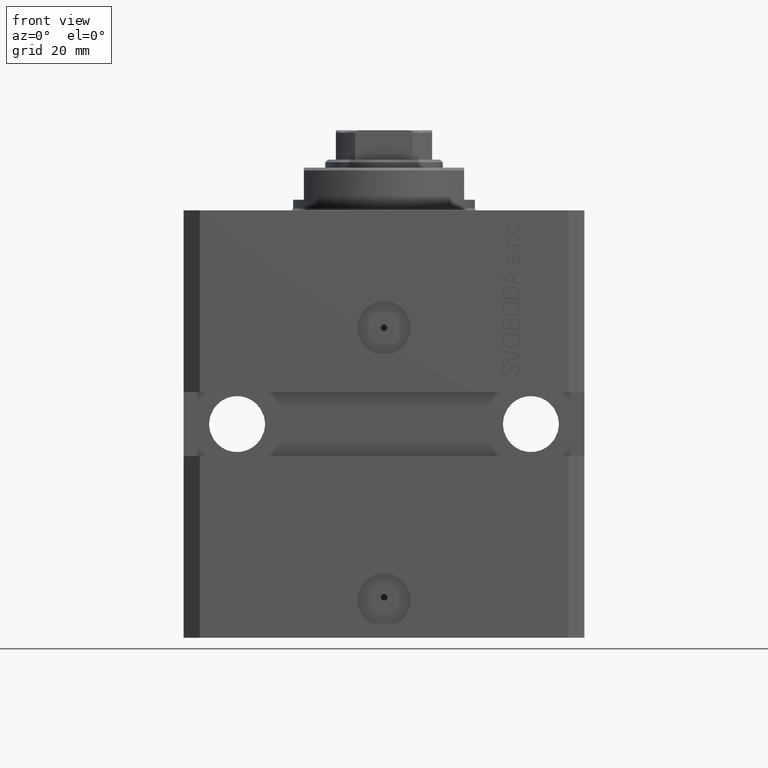
[diagram: clean part render]
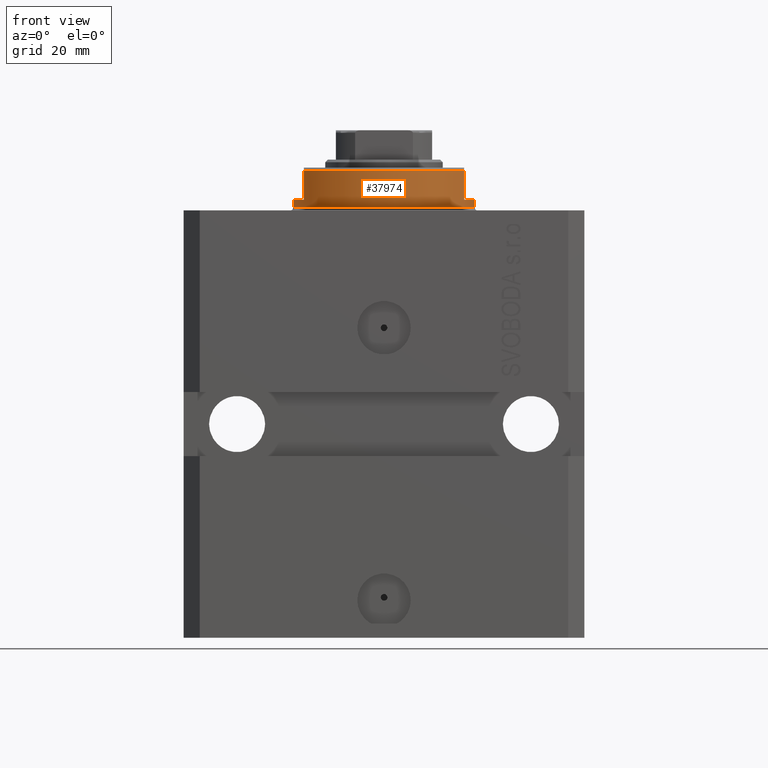
[diagram: same view with one face highlighted and labeled with its STEP entity id]
A machine part, front view. The second image highlights one B-rep face of the part: STEP entity #37974.
In plain terms, the highlighted cylindrical surface (partial cylindrical patch) has radius 17 mm, axis along (0, 0, -1).
Its self-contained STEP definition (entity closure, byte-faithful):
#385 = CARTESIAN_POINT ( 'NONE',  ( 0.000000000000000000, 0.000000000000000000, -7.500000000000007105 ) ) ;
#545 = DIRECTION ( 'NONE',  ( -1.000000000000000000, 0.000000000000000000, 0.000000000000000000 ) ) ;
#1736 = CARTESIAN_POINT ( 'NONE',  ( 0.000000000000000000, 0.000000000000000000, -2.000000000000000000 ) ) ;
#2164 = ORIENTED_EDGE ( 'NONE', *, *, #5135, .F. ) ;
#2319 = EDGE_CURVE ( 'NONE', #17442, #9209, #27029, .T. ) ;
#3044 = CARTESIAN_POINT ( 'NONE',  ( 0.000000000000000000, 0.000000000000000000, -8.000000000000000000 ) ) ;
#3282 = DIRECTION ( 'NONE',  ( -0.000000000000000000, -0.000000000000000000, 1.000000000000000000 ) ) ;
#3836 = CARTESIAN_POINT ( 'NONE',  ( -15.00000000000000000, -8.000000000000001776, -7.500000000000007105 ) ) ;
#4951 = CIRCLE ( 'NONE', #28660, 17.00000000000000000 ) ;
#5135 = EDGE_CURVE ( 'NONE', #7674, #22213, #4951, .T. ) ;
#5319 = VERTEX_POINT ( 'NONE', #32610 ) ;
#5758 = DIRECTION ( 'NONE',  ( 1.000000000000000000, 0.000000000000000000, 0.000000000000000000 ) ) ;
#6352 = CIRCLE ( 'NONE', #9408, 17.00000000000000000 ) ;
#6887 = DIRECTION ( 'NONE',  ( 1.000000000000000000, 0.000000000000000000, 0.000000000000000000 ) ) ;
#7240 = VECTOR ( 'NONE', #13965, 1000.000000000000000 ) ;
#7674 = VERTEX_POINT ( 'NONE', #45765 ) ;
#9209 = VERTEX_POINT ( 'NONE', #41396 ) ;
#9408 = AXIS2_PLACEMENT_3D ( 'NONE', #385, #37250, #11418 ) ;
#11418 = DIRECTION ( 'NONE',  ( -1.000000000000000000, 0.000000000000000000, 0.000000000000000000 ) ) ;
#11684 = DIRECTION ( 'NONE',  ( 0.000000000000000000, 0.000000000000000000, -1.000000000000000000 ) ) ;
#13347 = CARTESIAN_POINT ( 'NONE',  ( 17.00000000000000000, 0.000000000000000000, -0.5000000000000004441 ) ) ;
#13463 = LINE ( 'NONE', #24459, #18380 ) ;
#13965 = DIRECTION ( 'NONE',  ( -0.000000000000000000, -0.000000000000000000, 1.000000000000000000 ) ) ;
#15182 = AXIS2_PLACEMENT_3D ( 'NONE', #3044, #3282, #6887 ) ;
#15189 = EDGE_CURVE ( 'NONE', #5319, #17873, #43545, .T. ) ;
#16349 = DIRECTION ( 'NONE',  ( -1.000000000000000000, 0.000000000000000000, 0.000000000000000000 ) ) ;
#17442 = VERTEX_POINT ( 'NONE', #13347 ) ;
#17661 = VECTOR ( 'NONE', #38436, 1000.000000000000000 ) ;
#17873 = VERTEX_POINT ( 'NONE', #37798 ) ;
#18380 = VECTOR ( 'NONE', #20866, 1000.000000000000000 ) ;
#20819 = EDGE_CURVE ( 'NONE', #5319, #26716, #30118, .T. ) ;
#20866 = DIRECTION ( 'NONE',  ( -0.000000000000000000, -0.000000000000000000, 1.000000000000000000 ) ) ;
#22213 = VERTEX_POINT ( 'NONE', #25417 ) ;
#22559 = EDGE_CURVE ( 'NONE', #22213, #47253, #24295, .T. ) ;
#23192 = ORIENTED_EDGE ( 'NONE', *, *, #34344, .T. ) ;
#23247 = ORIENTED_EDGE ( 'NONE', *, *, #22559, .F. ) ;
#24295 = LINE ( 'NONE', #45381, #17661 ) ;
#24459 = CARTESIAN_POINT ( 'NONE',  ( -17.00000000000000000, 2.081899558550500280E-15, -8.000000000000000000 ) ) ;
#24685 = ORIENTED_EDGE ( 'NONE', *, *, #20819, .T. ) ;
#24686 = ORIENTED_EDGE ( 'NONE', *, *, #2319, .T. ) ;
#25417 = CARTESIAN_POINT ( 'NONE',  ( 14.99999999999999645, -8.000000000000003553, -2.000000000000000000 ) ) ;
#26716 = VERTEX_POINT ( 'NONE', #3836 ) ;
#27029 = CIRCLE ( 'NONE', #40029, 17.00000000000000000 ) ;
#27557 = CARTESIAN_POINT ( 'NONE',  ( 0.000000000000000000, 0.000000000000000000, -0.5000000000000004441 ) ) ;
#27817 = ORIENTED_EDGE ( 'NONE', *, *, #45354, .F. ) ;
#28660 = AXIS2_PLACEMENT_3D ( 'NONE', #1736, #45791, #16349 ) ;
#28915 = FACE_OUTER_BOUND ( 'NONE', #34809, .T. ) ;
#29873 = EDGE_CURVE ( 'NONE', #26716, #47253, #6352, .T. ) ;
#30118 = LINE ( 'NONE', #44471, #43648 ) ;
#30665 = DIRECTION ( 'NONE',  ( 0.000000000000000000, 0.000000000000000000, -1.000000000000000000 ) ) ;
#32610 = CARTESIAN_POINT ( 'NONE',  ( -14.99999999999999645, -8.000000000000003553, -2.000000000000000000 ) ) ;
#34344 = EDGE_CURVE ( 'NONE', #7674, #17442, #39338, .T. ) ;
#34809 = EDGE_LOOP ( 'NONE', ( #27817, #36881, #24685, #43491, #23247, #2164, #23192, #24686 ) ) ;
#35035 = AXIS2_PLACEMENT_3D ( 'NONE', #36953, #30665, #545 ) ;
#36881 = ORIENTED_EDGE ( 'NONE', *, *, #15189, .F. ) ;
#36953 = CARTESIAN_POINT ( 'NONE',  ( 0.000000000000000000, 0.000000000000000000, -2.000000000000000000 ) ) ;
#37250 = DIRECTION ( 'NONE',  ( 0.000000000000000000, 0.000000000000000000, 1.000000000000000000 ) ) ;
#37798 = CARTESIAN_POINT ( 'NONE',  ( -17.00000000000000000, 2.081899558550500280E-15, -2.000000000000000000 ) ) ;
#37974 = ADVANCED_FACE ( 'NONE', ( #28915 ), #42805, .T. ) ;
#38436 = DIRECTION ( 'NONE',  ( 0.000000000000000000, 0.000000000000000000, -1.000000000000000000 ) ) ;
#38560 = DIRECTION ( 'NONE',  ( -0.000000000000000000, -0.000000000000000000, -1.000000000000000000 ) ) ;
#39338 = LINE ( 'NONE', #43642, #7240 ) ;
#39605 = CARTESIAN_POINT ( 'NONE',  ( 15.00000000000000000, -8.000000000000001776, -7.500000000000007105 ) ) ;
#40029 = AXIS2_PLACEMENT_3D ( 'NONE', #27557, #38560, #5758 ) ;
#41396 = CARTESIAN_POINT ( 'NONE',  ( -17.00000000000000000, 2.081899558550500280E-15, -0.5000000000000004441 ) ) ;
#42805 = CYLINDRICAL_SURFACE ( 'NONE', #15182, 17.00000000000000000 ) ;
#43491 = ORIENTED_EDGE ( 'NONE', *, *, #29873, .T. ) ;
#43545 = CIRCLE ( 'NONE', #35035, 17.00000000000000000 ) ;
#43642 = CARTESIAN_POINT ( 'NONE',  ( 17.00000000000000000, 0.000000000000000000, -8.000000000000000000 ) ) ;
#43648 = VECTOR ( 'NONE', #11684, 1000.000000000000000 ) ;
#44471 = CARTESIAN_POINT ( 'NONE',  ( -15.00000000000000000, -8.000000000000001776, -8.000000000000000000 ) ) ;
#45354 = EDGE_CURVE ( 'NONE', #17873, #9209, #13463, .T. ) ;
#45381 = CARTESIAN_POINT ( 'NONE',  ( 15.00000000000000000, -8.000000000000001776, -8.000000000000000000 ) ) ;
#45765 = CARTESIAN_POINT ( 'NONE',  ( 17.00000000000000000, 0.000000000000000000, -2.000000000000000000 ) ) ;
#45791 = DIRECTION ( 'NONE',  ( 0.000000000000000000, 0.000000000000000000, -1.000000000000000000 ) ) ;
#47253 = VERTEX_POINT ( 'NONE', #39605 ) ;